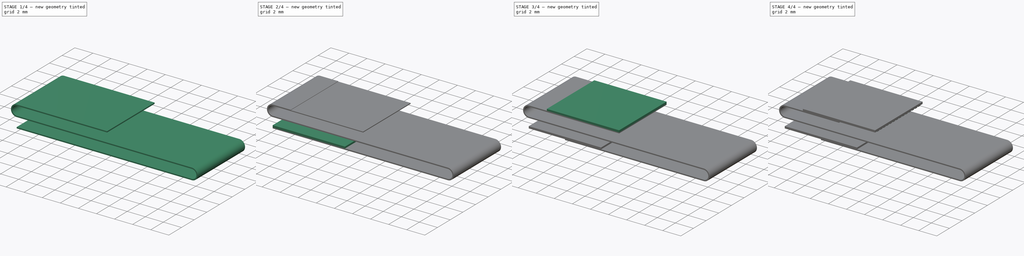
[diagram: build sequence overview — one tinted view per stage of 4, left to right]
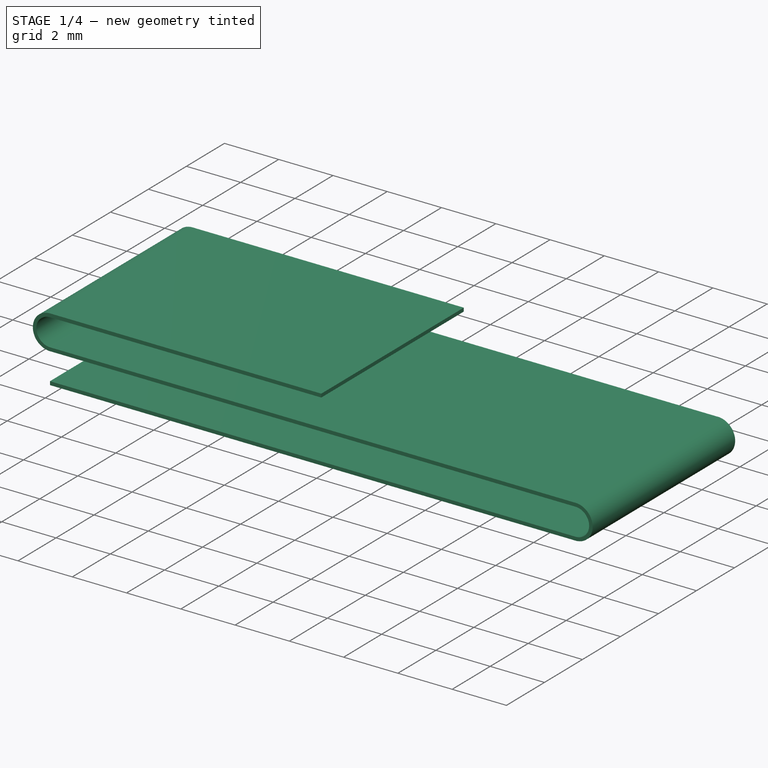
[diagram: stage 1 of 4 — iso view after this stage's code; geometry added in this stage tinted green]
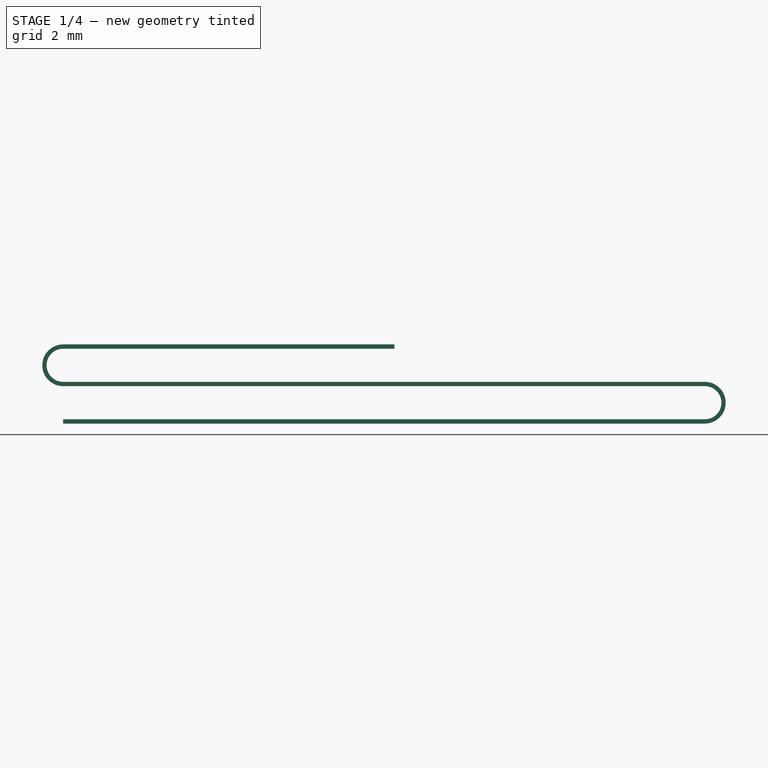
[diagram: stage 1 of 4 — front view after this stage's code; geometry added in this stage tinted green]
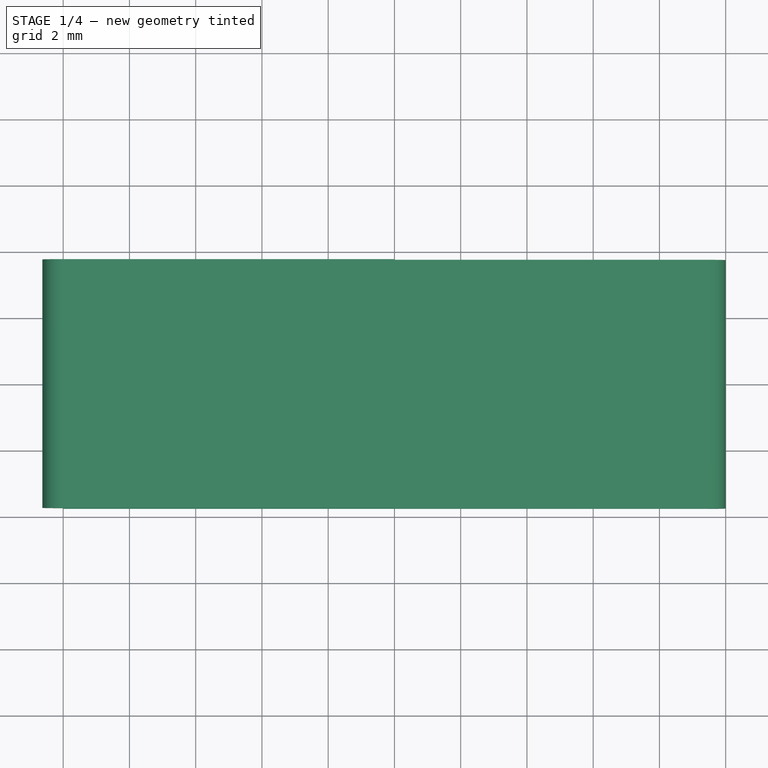
[diagram: stage 1 of 4 — top view after this stage's code; geometry added in this stage tinted green]
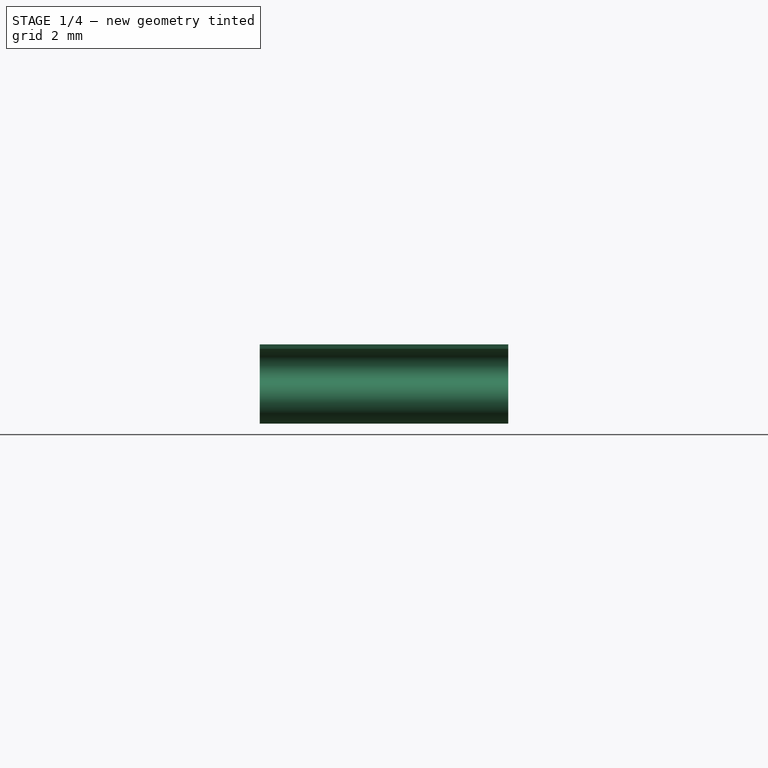
[diagram: stage 1 of 4 — right view after this stage's code; geometry added in this stage tinted green]
FCSTD DOCUMENT  (FreeCAD 0.18.4R)
Label: FFC_50mm
License: All rights reserved
LicenseURL: http://en.wikipedia.org/wiki/All_rights_reserved
objects: Sketcher::SketchObject×9, PartDesign::Pad×5, PartDesign::Pocket×4, PartDesign::FeaturePython×2, PartDesign::Body×1
note: 30 computed .brp shape members not serialized (recipe doc carries the construction recipe); baked Part::Feature solids carry a one-line shape summary decoded from their .brp

FEATURE [Sketcher::SketchObject] Sketch
  MapMode = 5
  Support = -> [XY_Plane]
  sketch-geometry (4):
    g0: LineSegment StartX=0 StartY=3.75 StartZ=0 EndX=20 EndY=3.75 EndZ=0
    g1: LineSegment StartX=20 StartY=3.75 StartZ=0 EndX=20 EndY=-3.75 EndZ=0
    g2: LineSegment StartX=20 StartY=-3.75 StartZ=0 EndX=0 EndY=-3.75 EndZ=0
    g3: LineSegment StartX=0 StartY=-3.75 StartZ=0 EndX=0 EndY=3.75 EndZ=0
  constraints (11):
    c: Coincident(g0,g1)
    c: Coincident(g1,g2)
    c: Coincident(g2,g3)
    c: Coincident(g3,g0)
    c: Horizontal(g0)
    c: Horizontal(g2)
    c: Vertical(g3)
    c: Symmetric(g0,g1,g-1)
    c: DistanceY(g1,g1) = 7.5
    c: DistanceX(g2,g2) = 20
    c: PointOnObject(g0,g-2)
FEATURE [PartDesign::Pad] Pad
  Length = 0.13
  Length2 = 100
  Midplane = true
  Profile = -> Sketch
  Type = 0
FEATURE [PartDesign::FeaturePython] Bend  # WARN: FeaturePython — macro-defined, semantics opaque (R4)
  AutoMiter = true
  BaseFeature = -> Pad
  BendType = 1
  LengthList = [20]
  ReliefFactor = 0.7
  UseReliefFactor = false
  angle = 180
  baseObject = -> Pad [Face2]
  bendAList = [180]
  extend1 = 0
  extend2 = 0
  gap1 = 0
  gap2 = 0
  invert = false
  kfactor = 0.5
  length = 20
  miterangle1 = 0
  miterangle2 = 0
  offset = 0
  radius = 0.5
  reliefType = 0
  reliefd = 1
  reliefw = 0.8
  sketchflip = false
  sketchinvert = false
  unfold = false
FEATURE [PartDesign::FeaturePython] Bend001  # WARN: FeaturePython — macro-defined, semantics opaque (R4)
  AutoMiter = true
  BaseFeature = -> Bend
  BendType = 1
  LengthList = [10]
  ReliefFactor = 0.7
  UseReliefFactor = false
  angle = 180
  baseObject = -> Bend [Face3]
  bendAList = [180]
  extend1 = 0
  extend2 = 0
  gap1 = 0
  gap2 = 0
  invert = true
  kfactor = 0.5
  length = 10
  miterangle1 = 0
  miterangle2 = 0
  offset = 0
  radius = 0.5
  reliefType = 0
  reliefd = 1
  reliefw = 0.8
  sketchflip = false
  sketchinvert = false
  unfold = false
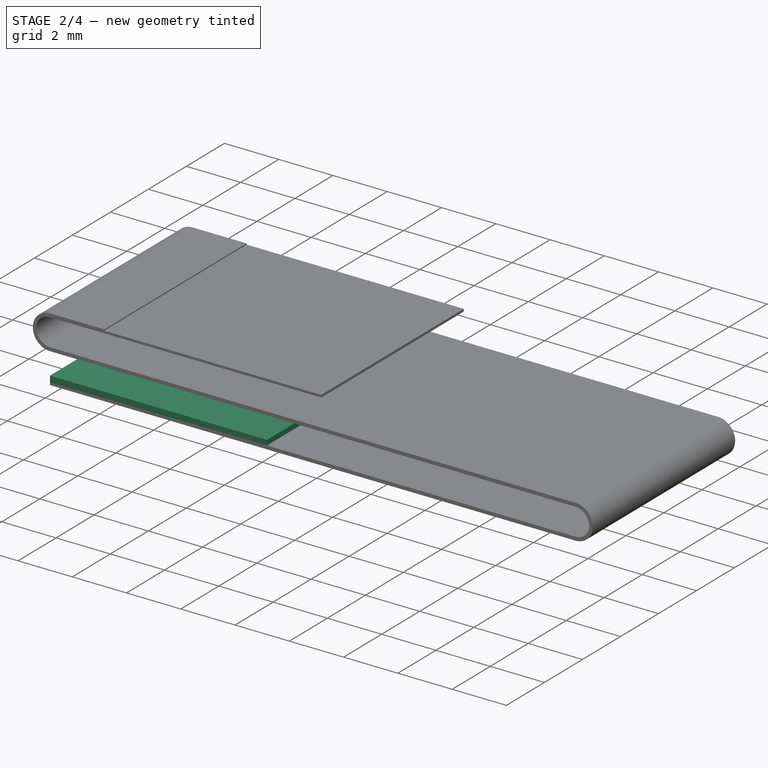
[diagram: stage 2 of 4 — iso view after this stage's code; geometry added in this stage tinted green]
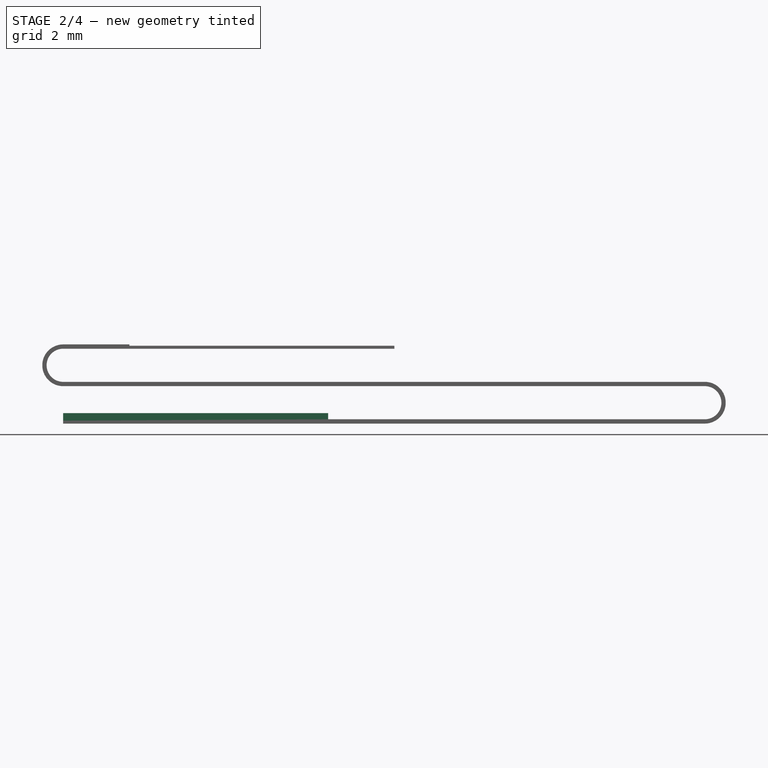
[diagram: stage 2 of 4 — front view after this stage's code; geometry added in this stage tinted green]
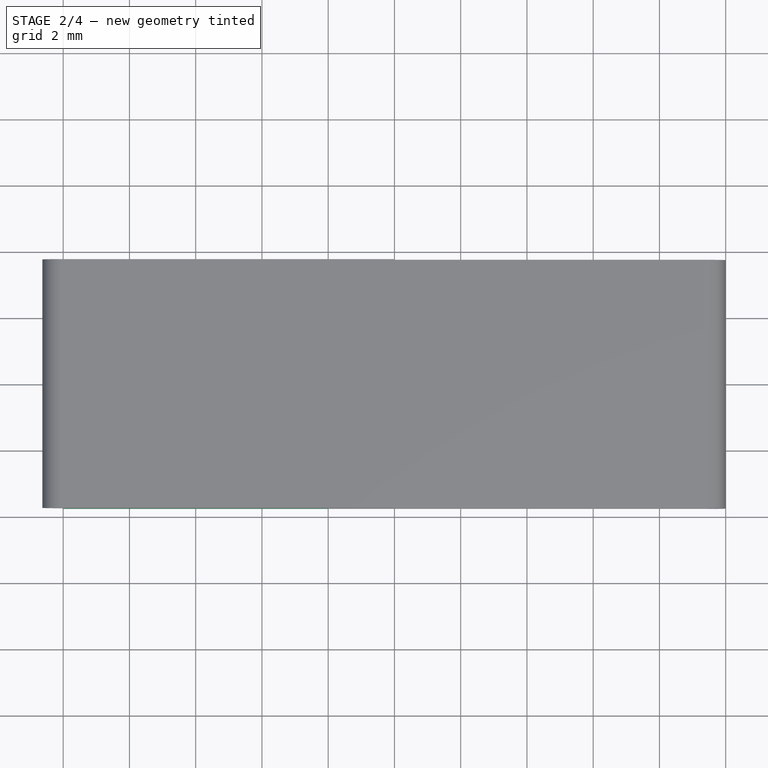
[diagram: stage 2 of 4 — top view after this stage's code; geometry added in this stage tinted green]
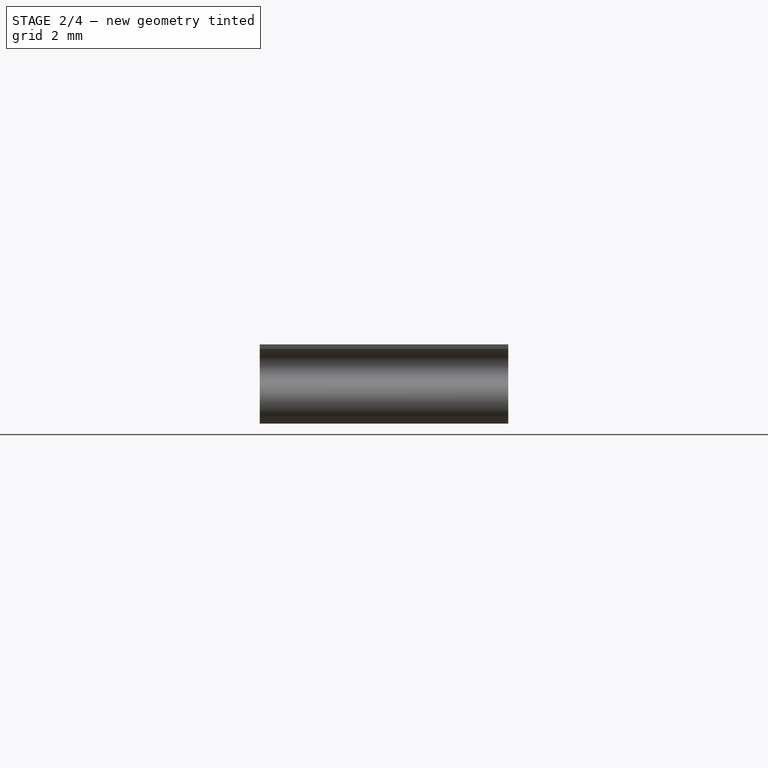
[diagram: stage 2 of 4 — right view after this stage's code; geometry added in this stage tinted green]
FEATURE [Sketcher::SketchObject] Sketch001
  MapMode = 5
  Placement = pos=(0,0,0.065) rot=(0,0,1;0rad)
  Support = -> [Bend001]
  sketch-geometry (4):
    g0: LineSegment StartX=0 StartY=3.75 StartZ=0 EndX=8 EndY=3.75 EndZ=0
    g1: LineSegment StartX=8 StartY=3.75 StartZ=0 EndX=8 EndY=-3.75 EndZ=0
    g2: LineSegment StartX=8 StartY=-3.75 StartZ=0 EndX=0 EndY=-3.75 EndZ=0
    g3: LineSegment StartX=0 StartY=-3.75 StartZ=0 EndX=0 EndY=3.75 EndZ=0
  constraints (11):
    c: Coincident(g0,g1)
    c: Coincident(g1,g2)
    c: Coincident(g2,g3)
    c: Coincident(g3,g0)
    c: Horizontal(g0)
    c: Horizontal(g2)
    c: Vertical(g3)
    c: PointOnObject(g0,g-2)
    c: DistanceX(g0,g0) = 8
    c: DistanceY(g1,g1) = 7.5
    c: Symmetric(g0,g1,g-1)
FEATURE [Sketcher::SketchObject] Sketch002
  MapMode = 5
  Placement = pos=(0,0,2.325) rot=(0,0,1;0rad)
  sketch-geometry (4):
    g0: LineSegment StartX=2 StartY=3.75 StartZ=0 EndX=10 EndY=3.75 EndZ=0
    g1: LineSegment StartX=10 StartY=3.75 StartZ=0 EndX=10 EndY=-3.75 EndZ=0
    g2: LineSegment StartX=10 StartY=-3.75 StartZ=0 EndX=2 EndY=-3.75 EndZ=0
    g3: LineSegment StartX=2 StartY=-3.75 StartZ=0 EndX=2 EndY=3.75 EndZ=0
  constraints (11):
    c: Coincident(g0,g1)
    c: Coincident(g1,g2)
    c: Coincident(g2,g3)
    c: Coincident(g3,g0)
    c: Horizontal(g0)
    c: Horizontal(g2)
    c: Vertical(g1)
    c: Symmetric(g0,g2,g-1)
    c: DistanceX(g0,g0) = 8
    c: DistanceY(g3,g3) = 7.5
    c: DistanceX(g-1,g0) = 10
FEATURE [PartDesign::Pocket] Pocket
  BaseFeature = -> Bend001
  Length = 0.04
  Length2 = 100
  Profile = -> Sketch001
  Type = 0
FEATURE [Sketcher::SketchObject] Sketch004
  MapMode = 5
  Placement = pos=(0,0,0.025) rot=(0,0,1;0rad)
  Support = -> [Pocket]
  sketch-geometry (4):
    g0: LineSegment StartX=0 StartY=3.75 StartZ=0 EndX=8 EndY=3.75 EndZ=0
    g1: LineSegment StartX=8 StartY=3.75 StartZ=0 EndX=8 EndY=-3.75 EndZ=0
    g2: LineSegment StartX=8 StartY=-3.75 StartZ=0 EndX=0 EndY=-3.75 EndZ=0
    g3: LineSegment StartX=0 StartY=-3.75 StartZ=0 EndX=0 EndY=3.75 EndZ=0
  constraints (11):
    c: Coincident(g0,g1)
    c: Coincident(g1,g2)
    c: Coincident(g2,g3)
    c: Coincident(g3,g0)
    c: Horizontal(g0)
    c: Horizontal(g2)
    c: Vertical(g3)
    c: Symmetric(g0,g1,g-1)
    c: PointOnObject(g0,g-2)
    c: DistanceX(g0,g0) = 8
    c: DistanceY(g3,g3) = 7.5
FEATURE [PartDesign::Pad] Pad001
  BaseFeature = -> Pocket
  Length = 0.225
  Length2 = 100
  Profile = -> Sketch004
  Type = 0
FEATURE [PartDesign::Pocket] Pocket001
  BaseFeature = -> Pad001
  Length = 0.04
  Length2 = 100
  Profile = -> Sketch002
  Type = 0
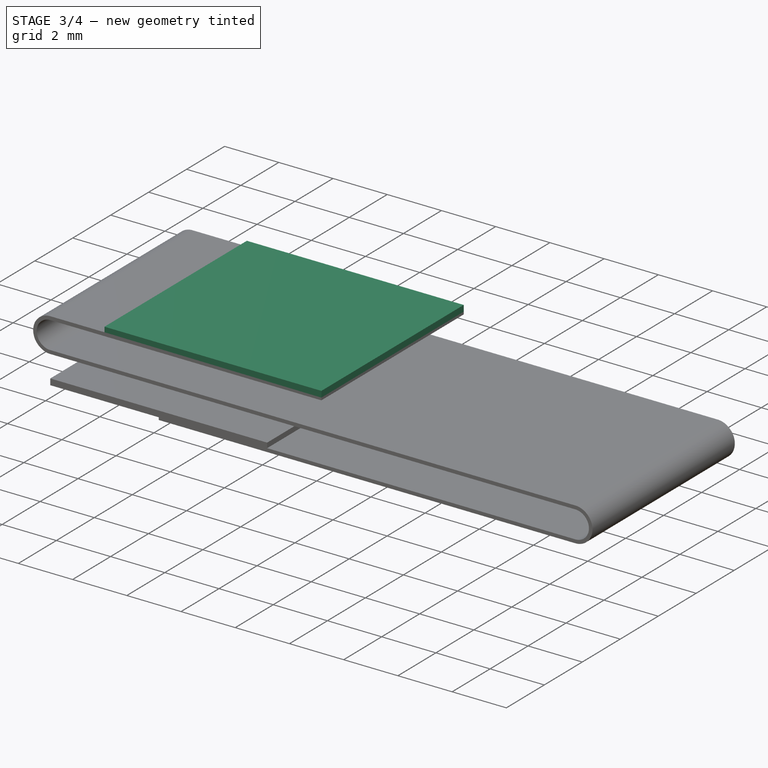
[diagram: stage 3 of 4 — iso view after this stage's code; geometry added in this stage tinted green]
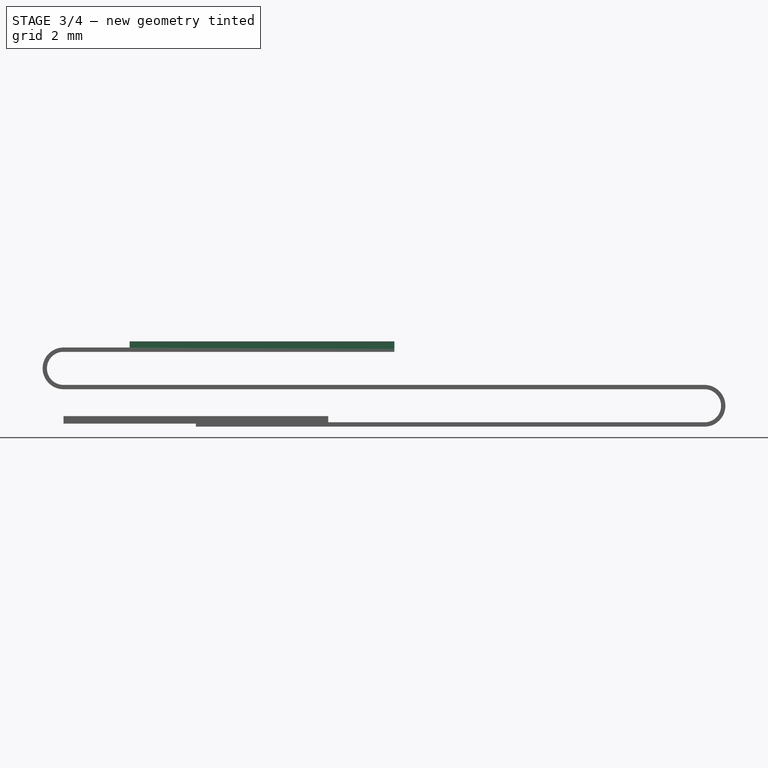
[diagram: stage 3 of 4 — front view after this stage's code; geometry added in this stage tinted green]
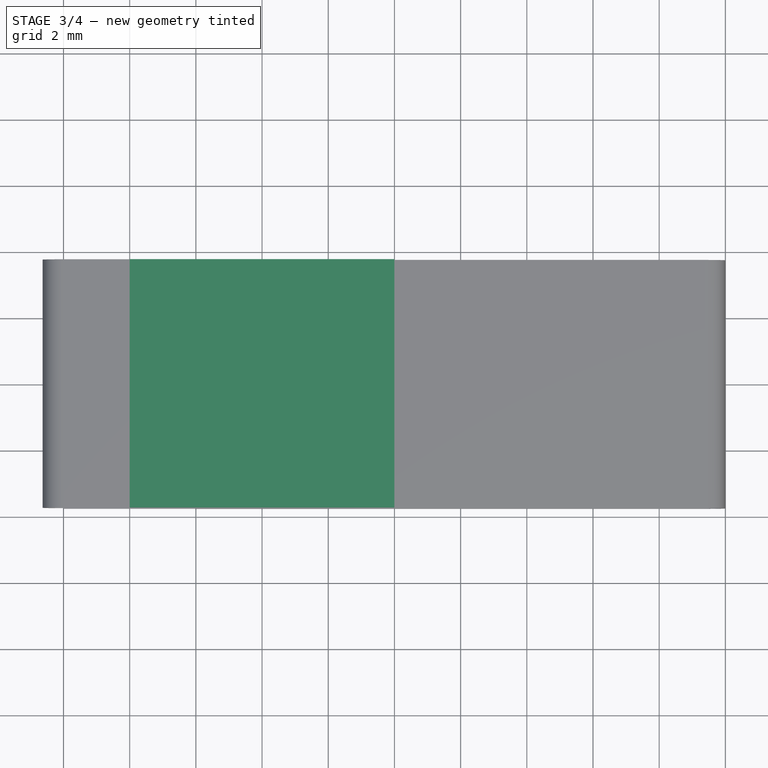
[diagram: stage 3 of 4 — top view after this stage's code; geometry added in this stage tinted green]
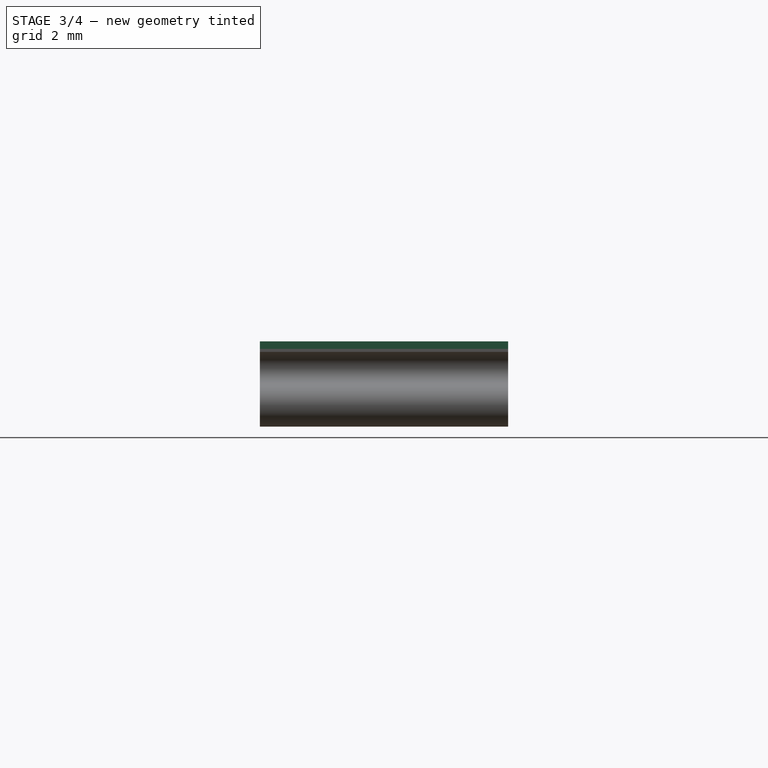
[diagram: stage 3 of 4 — right view after this stage's code; geometry added in this stage tinted green]
FEATURE [Sketcher::SketchObject] Sketch005
  MapMode = 5
  Placement = pos=(0,0,2.285) rot=(0,0,1;0rad)
  Support = -> [Pocket001]
  sketch-geometry (4):
    g0: LineSegment StartX=2 StartY=3.75 StartZ=0 EndX=10 EndY=3.75 EndZ=0
    g1: LineSegment StartX=10 StartY=3.75 StartZ=0 EndX=10 EndY=-3.75 EndZ=0
    g2: LineSegment StartX=10 StartY=-3.75 StartZ=0 EndX=2 EndY=-3.75 EndZ=0
    g3: LineSegment StartX=2 StartY=-3.75 StartZ=0 EndX=2 EndY=3.75 EndZ=0
  constraints (11):
    c: Coincident(g0,g1)
    c: Coincident(g1,g2)
    c: Coincident(g2,g3)
    c: Coincident(g3,g0)
    c: Horizontal(g0)
    c: Horizontal(g2)
    c: Vertical(g3)
    c: Symmetric(g0,g1,g-1)
    c: DistanceX(g0,g0) = 8
    c: DistanceY(g1,g1) = 7.5
    c: DistanceX(g-1,g1) = 10
FEATURE [PartDesign::Pad] Pad002
  BaseFeature = -> Pocket001
  Length = 0.225
  Length2 = 100
  Profile = -> Sketch005
  Type = 0
FEATURE [Sketcher::SketchObject] Sketch006
  MapMode = 5
  Placement = pos=(0,0,-0.065) rot=(1,0,0;3.14159rad)
  Support = -> [Pad002]
  sketch-geometry (4):
    g0: LineSegment StartX=0 StartY=3.75 StartZ=0 EndX=4 EndY=3.75 EndZ=0
    g1: LineSegment StartX=4 StartY=3.75 StartZ=0 EndX=4 EndY=-3.75 EndZ=0
    g2: LineSegment StartX=4 StartY=-3.75 StartZ=0 EndX=0 EndY=-3.75 EndZ=0
    g3: LineSegment StartX=0 StartY=-3.75 StartZ=0 EndX=0 EndY=3.75 EndZ=0
  constraints (11):
    c: Coincident(g0,g1)
    c: Coincident(g1,g2)
    c: Coincident(g2,g3)
    c: Coincident(g3,g0)
    c: Horizontal(g0)
    c: Horizontal(g2)
    c: Vertical(g3)
    c: Symmetric(g0,g1,g-1)
    c: DistanceX(g0,g0) = 4
    c: DistanceY(g1,g1) = 7.5
    c: PointOnObject(g0,g-2)
FEATURE [PartDesign::Pocket] Pocket002
  BaseFeature = -> Pad002
  Length = 0.09
  Length2 = 100
  Profile = -> Sketch006
  Type = 0
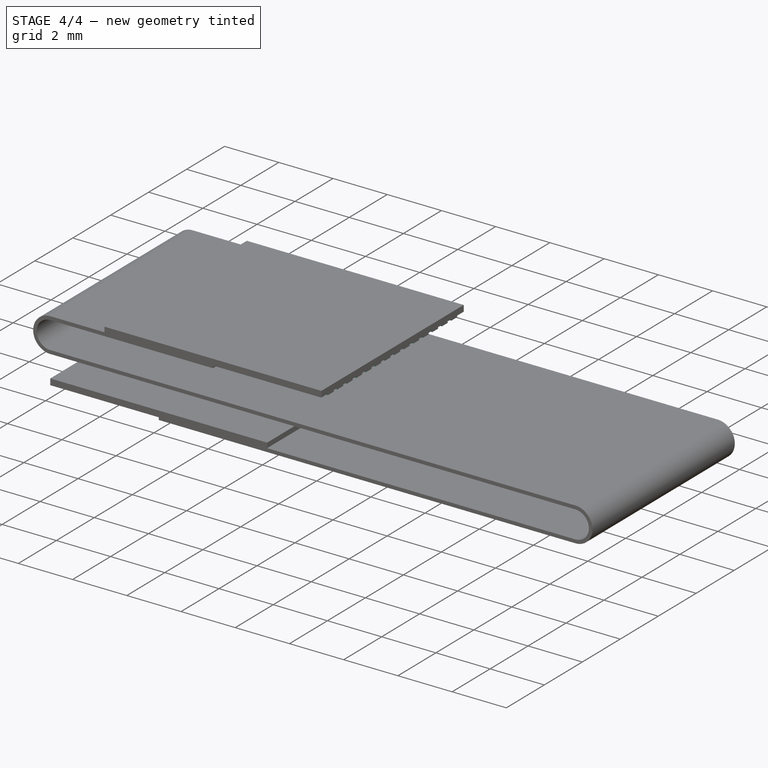
[diagram: stage 4 of 4 — iso view after this stage's code; geometry added in this stage tinted green]
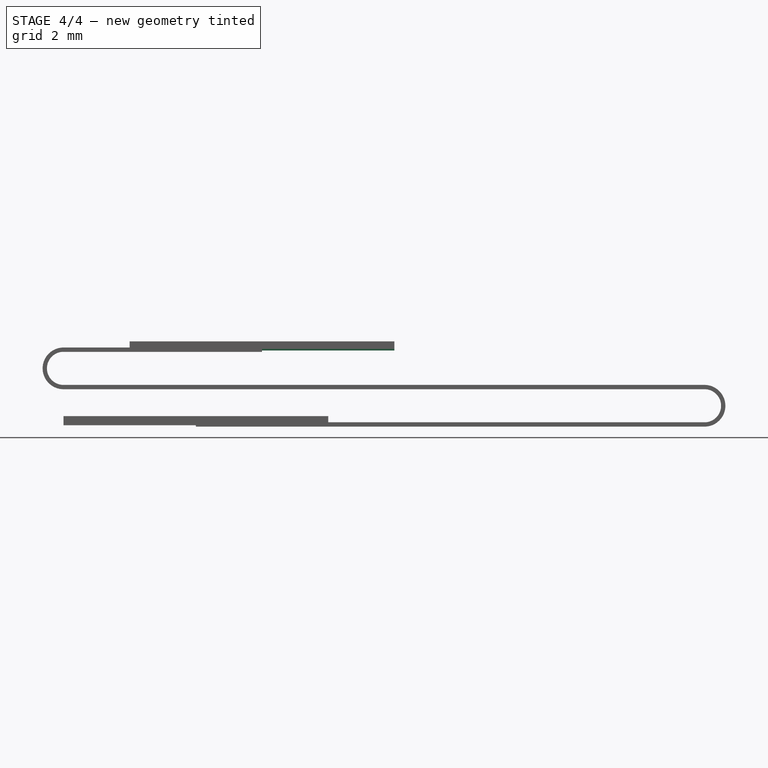
[diagram: stage 4 of 4 — front view after this stage's code; geometry added in this stage tinted green]
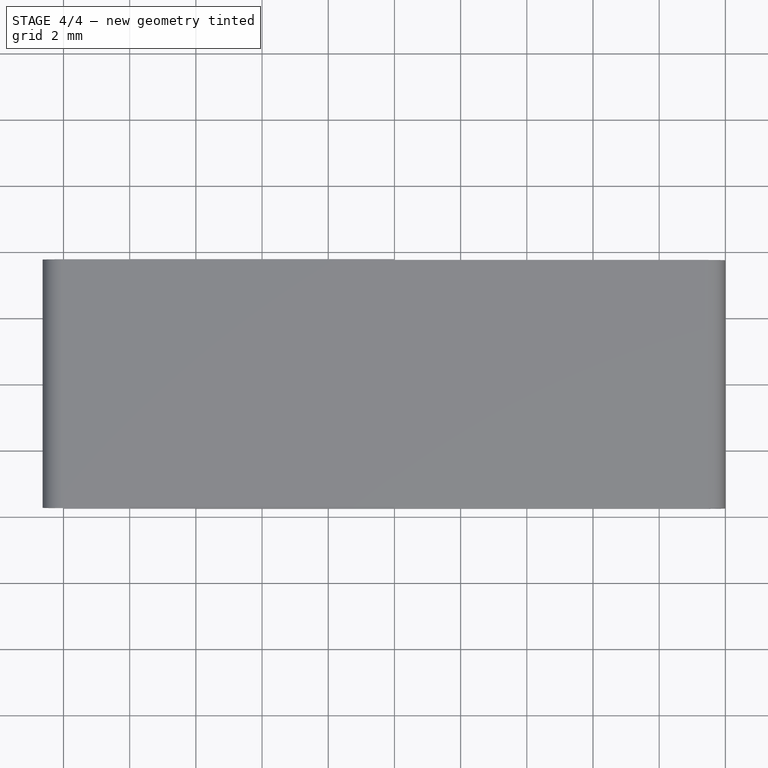
[diagram: stage 4 of 4 — top view after this stage's code; geometry added in this stage tinted green]
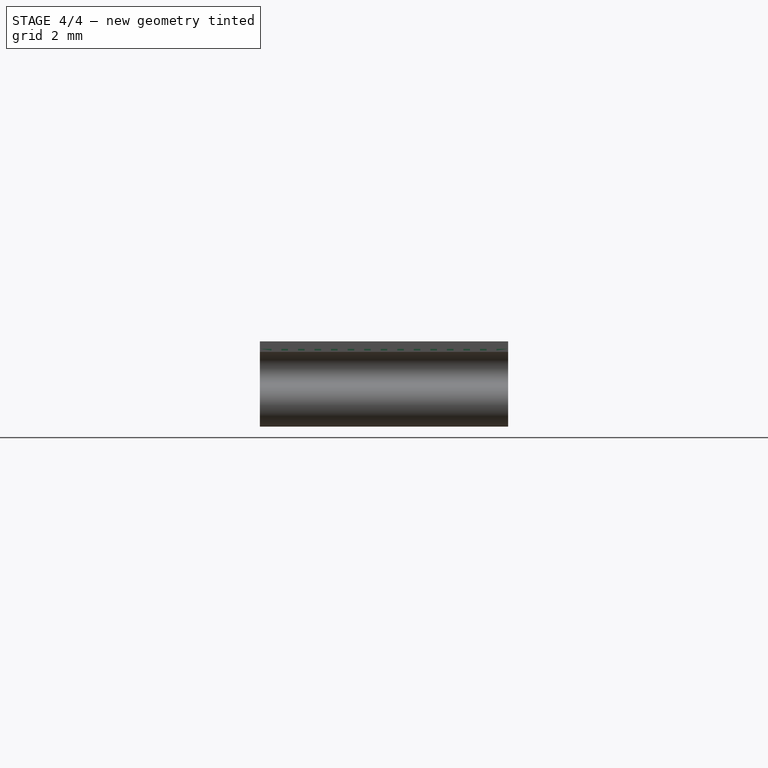
[diagram: stage 4 of 4 — right view after this stage's code; geometry added in this stage tinted green]
FEATURE [Sketcher::SketchObject] Sketch007
  MapMode = 5
  Placement = pos=(0,0,2.195) rot=(1,0,0;3.14159rad)
  Support = -> [Pocket002]
  sketch-geometry (4):
    g0: LineSegment StartX=6 StartY=3.75 StartZ=0 EndX=10 EndY=3.75 EndZ=0
    g1: LineSegment StartX=10 StartY=3.75 StartZ=0 EndX=10 EndY=-3.75 EndZ=0
    g2: LineSegment StartX=10 StartY=-3.75 StartZ=0 EndX=6 EndY=-3.75 EndZ=0
    g3: LineSegment StartX=6 StartY=-3.75 StartZ=0 EndX=6 EndY=3.75 EndZ=0
  constraints (11):
    c: Coincident(g0,g1)
    c: Coincident(g1,g2)
    c: Coincident(g2,g3)
    c: Coincident(g3,g0)
    c: Horizontal(g0)
    c: Horizontal(g2)
    c: Vertical(g1)
    c: Symmetric(g0,g2,g-1)
    c: DistanceY(g3,g3) = 7.5
    c: DistanceX(g0,g0) = 4
    c: DistanceX(g-1,g1) = 10
FEATURE [PartDesign::Pocket] Pocket003
  BaseFeature = -> Pocket002
  Length = 0.09
  Length2 = 100
  Profile = -> Sketch007
  Type = 0
FEATURE [Sketcher::SketchObject] Sketch008  label="Conductors"
  MapMode = 5
  Placement = pos=(0,0,0.025) rot=(1,0,0;3.14159rad)
  Support = -> [Pocket003]
  sketch-geometry (57):
    g0: LineSegment StartX=-3.6e-15 StartY=3.4 StartZ=0 EndX=4 EndY=3.4 EndZ=0
    g1: LineSegment StartX=4 StartY=3.4 StartZ=0 EndX=4 EndY=3.1 EndZ=0
    g2: LineSegment StartX=4 StartY=3.1 StartZ=0 EndX=-3.6e-15 EndY=3.1 EndZ=0
    g3: LineSegment StartX=-3.6e-15 StartY=3.1 StartZ=0 EndX=-3.6e-15 EndY=3.4 EndZ=0
    g4: LineSegment StartX=-3.6e-15 StartY=2.9 StartZ=0 EndX=4 EndY=2.9 EndZ=0
    g5: LineSegment StartX=4 StartY=2.9 StartZ=0 EndX=4 EndY=2.6 EndZ=0
    g6: LineSegment StartX=4 StartY=2.6 StartZ=0 EndX=-3.6e-15 EndY=2.6 EndZ=0
    g7: LineSegment StartX=-3.6e-15 StartY=2.6 StartZ=0 EndX=-3.6e-15 EndY=2.9 EndZ=0
    g8: LineSegment StartX=-3.6e-15 StartY=2.4 StartZ=0 EndX=4 EndY=2.4 EndZ=0
    g9: LineSegment StartX=4 StartY=2.4 StartZ=0 EndX=4 EndY=2.1 EndZ=0
    g10: LineSegment StartX=4 StartY=2.1 StartZ=0 EndX=-3.6e-15 EndY=2.1 EndZ=0
    g11: LineSegment StartX=-3.6e-15 StartY=2.1 StartZ=0 EndX=-3.6e-15 EndY=2.4 EndZ=0
    g12: LineSegment StartX=-3.6e-15 StartY=1.9 StartZ=0 EndX=4 EndY=1.9 EndZ=0
    g13: LineSegment StartX=4 StartY=1.9 StartZ=0 EndX=4 EndY=1.6 EndZ=0
    g14: LineSegment StartX=4 StartY=1.6 StartZ=0 EndX=-3.6e-15 EndY=1.6 EndZ=0
    g15: LineSegment StartX=-3.6e-15 StartY=1.6 StartZ=0 EndX=-3.6e-15 EndY=1.9 EndZ=0
    g16: LineSegment StartX=-3.6e-15 StartY=1.4 StartZ=0 EndX=4 EndY=1.4 EndZ=0
    g17: LineSegment StartX=4 StartY=1.4 StartZ=0 EndX=4 EndY=1.1 EndZ=0
    g18: LineSegment StartX=4 StartY=1.1 StartZ=0 EndX=-3.6e-15 EndY=1.1 EndZ=0
    g19: LineSegment StartX=-3.6e-15 StartY=1.1 StartZ=0 EndX=-3.6e-15 EndY=1.4 EndZ=0
    g20: LineSegment StartX=-3.6e-15 StartY=0.9 StartZ=0 EndX=4 EndY=0.9 EndZ=0
    g21: LineSegment StartX=4 StartY=0.9 StartZ=0 EndX=4 EndY=0.6 EndZ=0
    g22: LineSegment StartX=4 StartY=0.6 StartZ=0 EndX=-3.6e-15 EndY=0.6 EndZ=0
    g23: LineSegment StartX=-3.6e-15 StartY=0.6 StartZ=0 EndX=-3.6e-15 EndY=0.9 EndZ=0
    g24: LineSegment StartX=-3.6e-15 StartY=0.4 StartZ=0 EndX=4 EndY=0.4 EndZ=0
    g25: LineSegment StartX=4 StartY=0.4 StartZ=0 EndX=4 EndY=0.1 EndZ=0
    g26: LineSegment StartX=4 StartY=0.1 StartZ=0 EndX=-3.6e-15 EndY=0.1 EndZ=0
    g27: LineSegment StartX=-3.6e-15 StartY=0.1 StartZ=0 EndX=-3.6e-15 EndY=0.4 EndZ=0
    g28: LineSegment StartX=-3.6e-15 StartY=-0.1 StartZ=0 EndX=4 EndY=-0.1 EndZ=0
    g29: LineSegment StartX=4 StartY=-0.1 StartZ=0 EndX=4 EndY=-0.4 EndZ=0
    g30: LineSegment StartX=4 StartY=-0.4 StartZ=0 EndX=-3.6e-15 EndY=-0.4 EndZ=0
    g31: LineSegment StartX=-3.6e-15 StartY=-0.4 StartZ=0 EndX=-3.6e-15 EndY=-0.1 EndZ=0
    g32: LineSegment StartX=-3.6e-15 StartY=-0.6 StartZ=0 EndX=4 EndY=-0.6 EndZ=0
    g33: LineSegment StartX=4 StartY=-0.6 StartZ=0 EndX=4 EndY=-0.9 EndZ=0
    g34: LineSegment StartX=4 StartY=-0.9 StartZ=0 EndX=-3.6e-15 EndY=-0.9 EndZ=0
    g35: LineSegment StartX=-3.6e-15 StartY=-0.9 StartZ=0 EndX=-3.6e-15 EndY=-0.6 EndZ=0
    g36: LineSegment StartX=-3.6e-15 StartY=-1.1 StartZ=0 EndX=4 EndY=-1.1 EndZ=0
    g37: LineSegment StartX=4 StartY=-1.1 StartZ=0 EndX=4 EndY=-1.4 EndZ=0
    g38: LineSegment StartX=4 StartY=-1.4 StartZ=0 EndX=-3.6e-15 EndY=-1.4 EndZ=0
    g39: LineSegment StartX=-3.6e-15 StartY=-1.4 StartZ=0 EndX=-3.6e-15 EndY=-1.1 EndZ=0
    g40: LineSegment StartX=-3.6e-15 StartY=-1.6 StartZ=0 EndX=4 EndY=-1.6 EndZ=0
    g41: LineSegment StartX=4 StartY=-1.6 StartZ=0 EndX=4 EndY=-1.9 EndZ=0
    g42: LineSegment StartX=4 StartY=-1.9 StartZ=0 EndX=-3.6e-15 EndY=-1.9 EndZ=0
    g43: LineSegment StartX=-3.6e-15 StartY=-1.9 StartZ=0 EndX=-3.6e-15 EndY=-1.6 EndZ=0
    g44: LineSegment StartX=-3.6e-15 StartY=-2.1 StartZ=0 EndX=4 EndY=-2.1 EndZ=0
    g45: LineSegment StartX=4 StartY=-2.1 StartZ=0 EndX=4 EndY=-2.4 EndZ=0
    g46: LineSegment StartX=4 StartY=-2.4 StartZ=0 EndX=-3.6e-15 EndY=-2.4 EndZ=0
    g47: LineSegment StartX=-3.6e-15 StartY=-2.4 StartZ=0 EndX=-3.6e-15 EndY=-2.1 EndZ=0
    g48: LineSegment StartX=-3.6e-15 StartY=-2.6 StartZ=0 EndX=4 EndY=-2.6 EndZ=0
    g49: LineSegment StartX=4 StartY=-2.6 StartZ=0 EndX=4 EndY=-2.9 EndZ=0
    g50: LineSegment StartX=4 StartY=-2.9 StartZ=0 EndX=-3.6e-15 EndY=-2.9 EndZ=0
    g51: LineSegment StartX=-3.6e-15 StartY=-2.9 StartZ=0 EndX=-3.6e-15 EndY=-2.6 EndZ=0
    g52: LineSegment StartX=-3.6e-15 StartY=-3.1 StartZ=0 EndX=4 EndY=-3.1 EndZ=0
    g53: LineSegment StartX=4 StartY=-3.1 StartZ=0 EndX=4 EndY=-3.4 EndZ=0
    g54: LineSegment StartX=4 StartY=-3.4 StartZ=0 EndX=-3.6e-15 EndY=-3.4 EndZ=0
    g55: LineSegment StartX=-3.6e-15 StartY=-3.4 StartZ=0 EndX=-3.6e-15 EndY=-3.1 EndZ=0
    g56: GeomPoint X=0 Y=3.26353 Z=0
  constraints (169):
    c: Coincident(g0,g1)
    c: Coincident(g1,g2)
    c: Coincident(g2,g3)
    c: Coincident(g3,g0)
    c: Horizontal(g0)
    c: Horizontal(g2)
    c: Vertical(g1)
    c: Vertical(g3)
    c: DistanceX(g0,g0) = 4
    c: DistanceY(g1,g1) = 0.3
    c: Coincident(g4,g5)
    c: Coincident(g5,g6)
    c: Coincident(g6,g7)
    c: Coincident(g7,g4)
    c: Horizontal(g4)
    c: Horizontal(g6)
    c: Vertical(g5)
    c: Vertical(g7)
    c: Equal(g0,g4) = 4
    c: Equal(g1,g5) = 0.3
    c: Coincident(g8,g9)
    c: Coincident(g9,g10)
    c: Coincident(g10,g11)
    c: Coincident(g11,g8)
    c: Horizontal(g8)
    c: Horizontal(g10)
    c: Vertical(g9)
    c: Vertical(g11)
    c: Equal(g8,g0)
    c: Equal(g9,g1)
    c: Coincident(g12,g13)
    c: Coincident(g13,g14)
    c: Coincident(g14,g15)
    c: Coincident(g15,g12)
    c: Horizontal(g12)
    c: Horizontal(g14)
    c: Vertical(g13)
    c: Vertical(g15)
    c: Equal(g12,g0)
    c: Equal(g13,g1)
    c: Coincident(g16,g17)
    c: Coincident(g17,g18)
    c: Coincident(g18,g19)
    c: Coincident(g19,g16)
    c: Horizontal(g16)
    c: Horizontal(g18)
    c: Vertical(g17)
    c: Vertical(g19)
    c: Equal(g0,g16) = 4
    c: Equal(g1,g17) = 0.3
    c: Coincident(g20,g21)
    c: Coincident(g21,g22)
    c: Coincident(g22,g23)
    c: Coincident(g23,g20)
    c: Horizontal(g20)
    c: Horizontal(g22)
    c: Vertical(g21)
    c: Vertical(g23)
    c: Equal(g0,g20) = 4
    c: Equal(g1,g21) = 0.3
    c: Coincident(g24,g25)
    c: Coincident(g25,g26)
    c: Coincident(g26,g27)
    c: Coincident(g27,g24)
    c: Horizontal(g24)
    c: Horizontal(g26)
    c: Vertical(g25)
    c: Vertical(g27)
    c: Equal(g0,g24) = 4
    c: Equal(g1,g25) = 0.3
    c: Coincident(g28,g29)
    c: Coincident(g29,g30)
    c: Coincident(g30,g31)
    c: Coincident(g31,g28)
    c: Horizontal(g28)
    c: Horizontal(g30)
    c: Vertical(g29)
    c: Vertical(g31)
    c: Equal(g0,g28) = 4
    c: Equal(g1,g29) = 0.3
    c: Coincident(g32,g33)
    c: Coincident(g33,g34)
    c: Coincident(g34,g35)
    c: Coincident(g35,g32)
    c: Horizontal(g32)
    c: Horizontal(g34)
    c: Vertical(g33)
    c: Vertical(g35)
    c: Equal(g0,g32) = 4
    c: Equal(g1,g33) = 0.3
    c: Coincident(g36,g37)
    c: Coincident(g37,g38)
    c: Coincident(g38,g39)
    c: Coincident(g39,g36)
    c: Horizontal(g36)
    c: Horizontal(g38)
    c: Vertical(g37)
    c: Vertical(g39)
    c: Equal(g0,g36) = 4
    c: Equal(g1,g37) = 0.3
    c: Coincident(g40,g41)
    c: Coincident(g41,g42)
    c: Coincident(g42,g43)
    c: Coincident(g43,g40)
    c: Horizontal(g40)
    c: Horizontal(g42)
    c: Vertical(g41)
    c: Vertical(g43)
    c: Equal(g0,g40) = 4
    c: Equal(g1,g41) = 0.3
    c: Coincident(g44,g45)
    c: Coincident(g45,g46)
    c: Coincident(g46,g47)
    c: Coincident(g47,g44)
    c: Horizontal(g44)
    c: Horizontal(g46)
    c: Vertical(g45)
    c: Vertical(g47)
    c: Equal(g0,g44) = 4
    c: Equal(g1,g45) = 0.3
    c: Coincident(g48,g49)
    c: Coincident(g49,g50)
    c: Coincident(g50,g51)
    c: Coincident(g51,g48)
    c: Horizontal(g48)
    c: Horizontal(g50)
    c: Vertical(g49)
    c: Vertical(g51)
    c: Equal(g0,g48) = 4
    c: Equal(g1,g49) = 0.3
    c: Coincident(g52,g53)
    c: Coincident(g53,g54)
    c: Coincident(g54,g55)
    c: Coincident(g55,g52)
    c: Horizontal(g52)
    c: Horizontal(g54)
    c: Vertical(g53)
    c: Vertical(g55)
    c: Equal(g0,g52) = 4
    c: Equal(g1,g53) = 0.3
    c: Vertical(g6,g10)
    c: Vertical(g10,g14)
    c: Vertical(g14,g18)
    c: Vertical(g18,g2)
    c: Vertical(g2,g22)
    c: Vertical(g22,g26)
    c: Vertical(g26,g30)
    c: Vertical(g30,g34)
    c: Vertical(g34,g38)
    c: Vertical(g38,g42)
    c: Vertical(g42,g46)
    c: Vertical(g46,g50)
    c: Vertical(g50,g54)
    c: DistanceY(g52,g48) = 0.5
    c: DistanceY(g48,g44) = 0.5
    c: DistanceY(g44,g40) = 0.5
    c: DistanceY(g40,g36) = 0.5
    c: DistanceY(g36,g32) = 0.5
    c: DistanceY(g32,g28) = 0.5
    c: DistanceY(g28,g24) = 0.5
    c: DistanceY(g24,g20) = 0.5
    c: DistanceY(g20,g16) = 0.5
    c: DistanceY(g16,g12) = 0.5
    c: DistanceY(g12,g8) = 0.5
    c: DistanceY(g8,g4) = 0.5
    c: DistanceY(g4,g0) = 0.5
    c: DistanceY(g-1,g26) = 0.1
    c: PointOnObject(g56,g3)
    c: PointOnObject(g56,g-2)
FEATURE [PartDesign::Pad] Pad003
  BaseFeature = -> Pocket003
  Length = 0.05
  Length2 = 100
  Profile = -> Sketch008
  Type = 0
FEATURE [Sketcher::SketchObject] CopySketch009
  Placement = pos=(0,0,2.285) rot=(1,0,0;3.14159rad)
  sketch-geometry (57):
    g0: LineSegment StartX=6 StartY=3.4 StartZ=0 EndX=10 EndY=3.4 EndZ=0
    g1: LineSegment StartX=10 StartY=3.4 StartZ=0 EndX=10 EndY=3.1 EndZ=0
    g2: LineSegment StartX=10 StartY=3.1 StartZ=0 EndX=6 EndY=3.1 EndZ=0
    g3: LineSegment StartX=6 StartY=3.1 StartZ=0 EndX=6 EndY=3.4 EndZ=0
    g4: LineSegment StartX=6 StartY=2.9 StartZ=0 EndX=10 EndY=2.9 EndZ=0
    g5: LineSegment StartX=10 StartY=2.9 StartZ=0 EndX=10 EndY=2.6 EndZ=0
    g6: LineSegment StartX=10 StartY=2.6 StartZ=0 EndX=6 EndY=2.6 EndZ=0
    g7: LineSegment StartX=6 StartY=2.6 StartZ=0 EndX=6 EndY=2.9 EndZ=0
    g8: LineSegment StartX=6 StartY=2.4 StartZ=0 EndX=10 EndY=2.4 EndZ=0
    g9: LineSegment StartX=10 StartY=2.4 StartZ=0 EndX=10 EndY=2.1 EndZ=0
    g10: LineSegment StartX=10 StartY=2.1 StartZ=0 EndX=6 EndY=2.1 EndZ=0
    g11: LineSegment StartX=6 StartY=2.1 StartZ=0 EndX=6 EndY=2.4 EndZ=0
    g12: LineSegment StartX=6 StartY=1.9 StartZ=0 EndX=10 EndY=1.9 EndZ=0
    g13: LineSegment StartX=10 StartY=1.9 StartZ=0 EndX=10 EndY=1.6 EndZ=0
    g14: LineSegment StartX=10 StartY=1.6 StartZ=0 EndX=6 EndY=1.6 EndZ=0
    g15: LineSegment StartX=6 StartY=1.6 StartZ=0 EndX=6 EndY=1.9 EndZ=0
    g16: LineSegment StartX=6 StartY=1.4 StartZ=0 EndX=10 EndY=1.4 EndZ=0
    g17: LineSegment StartX=10 StartY=1.4 StartZ=0 EndX=10 EndY=1.1 EndZ=0
    g18: LineSegment StartX=10 StartY=1.1 StartZ=0 EndX=6 EndY=1.1 EndZ=0
    g19: LineSegment StartX=6 StartY=1.1 StartZ=0 EndX=6 EndY=1.4 EndZ=0
    g20: LineSegment StartX=6 StartY=0.9 StartZ=0 EndX=10 EndY=0.9 EndZ=0
    g21: LineSegment StartX=10 StartY=0.9 StartZ=0 EndX=10 EndY=0.6 EndZ=0
    g22: LineSegment StartX=10 StartY=0.6 StartZ=0 EndX=6 EndY=0.6 EndZ=0
    g23: LineSegment StartX=6 StartY=0.6 StartZ=0 EndX=6 EndY=0.9 EndZ=0
    g24: LineSegment StartX=6 StartY=0.4 StartZ=0 EndX=10 EndY=0.4 EndZ=0
    g25: LineSegment StartX=10 StartY=0.4 StartZ=0 EndX=10 EndY=0.1 EndZ=0
    g26: LineSegment StartX=10 StartY=0.1 StartZ=0 EndX=6 EndY=0.1 EndZ=0
    g27: LineSegment StartX=6 StartY=0.1 StartZ=0 EndX=6 EndY=0.4 EndZ=0
    g28: LineSegment StartX=6 StartY=-0.1 StartZ=0 EndX=10 EndY=-0.1 EndZ=0
    g29: LineSegment StartX=10 StartY=-0.1 StartZ=0 EndX=10 EndY=-0.4 EndZ=0
    g30: LineSegment StartX=10 StartY=-0.4 StartZ=0 EndX=6 EndY=-0.4 EndZ=0
    g31: LineSegment StartX=6 StartY=-0.4 StartZ=0 EndX=6 EndY=-0.1 EndZ=0
    g32: LineSegment StartX=6 StartY=-0.6 StartZ=0 EndX=10 EndY=-0.6 EndZ=0
    g33: LineSegment StartX=10 StartY=-0.6 StartZ=0 EndX=10 EndY=-0.9 EndZ=0
    g34: LineSegment StartX=10 StartY=-0.9 StartZ=0 EndX=6 EndY=-0.9 EndZ=0
    g35: LineSegment StartX=6 StartY=-0.9 StartZ=0 EndX=6 EndY=-0.6 EndZ=0
    g36: LineSegment StartX=6 StartY=-1.1 StartZ=0 EndX=10 EndY=-1.1 EndZ=0
    g37: LineSegment StartX=10 StartY=-1.1 StartZ=0 EndX=10 EndY=-1.4 EndZ=0
    g38: LineSegment StartX=10 StartY=-1.4 StartZ=0 EndX=6 EndY=-1.4 EndZ=0
    g39: LineSegment StartX=6 StartY=-1.4 StartZ=0 EndX=6 EndY=-1.1 EndZ=0
    g40: LineSegment StartX=6 StartY=-1.6 StartZ=0 EndX=10 EndY=-1.6 EndZ=0
    g41: LineSegment StartX=10 StartY=-1.6 StartZ=0 EndX=10 EndY=-1.9 EndZ=0
    g42: LineSegment StartX=10 StartY=-1.9 StartZ=0 EndX=6 EndY=-1.9 EndZ=0
    g43: LineSegment StartX=6 StartY=-1.9 StartZ=0 EndX=6 EndY=-1.6 EndZ=0
    g44: LineSegment StartX=6 StartY=-2.1 StartZ=0 EndX=10 EndY=-2.1 EndZ=0
    g45: LineSegment StartX=10 StartY=-2.1 StartZ=0 EndX=10 EndY=-2.4 EndZ=0
    g46: LineSegment StartX=10 StartY=-2.4 StartZ=0 EndX=6 EndY=-2.4 EndZ=0
    g47: LineSegment StartX=6 StartY=-2.4 StartZ=0 EndX=6 EndY=-2.1 EndZ=0
    g48: LineSegment StartX=6 StartY=-2.6 StartZ=0 EndX=10 EndY=-2.6 EndZ=0
    g49: LineSegment StartX=10 StartY=-2.6 StartZ=0 EndX=10 EndY=-2.9 EndZ=0
    g50: LineSegment StartX=10 StartY=-2.9 StartZ=0 EndX=6 EndY=-2.9 EndZ=0
    g51: LineSegment StartX=6 StartY=-2.9 StartZ=0 EndX=6 EndY=-2.6 EndZ=0
    g52: LineSegment StartX=6 StartY=-3.1 StartZ=0 EndX=10 EndY=-3.1 EndZ=0
    g53: LineSegment StartX=10 StartY=-3.1 StartZ=0 EndX=10 EndY=-3.4 EndZ=0
    g54: LineSegment StartX=10 StartY=-3.4 StartZ=0 EndX=6 EndY=-3.4 EndZ=0
    g55: LineSegment StartX=6 StartY=-3.4 StartZ=0 EndX=6 EndY=-3.1 EndZ=0
    g56: GeomPoint X=6 Y=3.26353 Z=0
  constraints (169):
    c: Coincident(g0,g1)
    c: Coincident(g1,g2)
    c: Coincident(g2,g3)
    c: Coincident(g3,g0)
    c: Horizontal(g0)
    c: Horizontal(g2)
    c: Vertical(g1)
    c: Vertical(g3)
    c: DistanceX(g0,g0) = 4
    c: DistanceY(g1,g1) = 0.3
    c: Coincident(g4,g5)
    c: Coincident(g5,g6)
    c: Coincident(g6,g7)
    c: Coincident(g7,g4)
    c: Horizontal(g4)
    c: Horizontal(g6)
    c: Vertical(g5)
    c: Vertical(g7)
    c: Equal(g0,g4) = 4
    c: Equal(g1,g5) = 0.3
    c: Coincident(g8,g9)
    c: Coincident(g9,g10)
    c: Coincident(g10,g11)
    c: Coincident(g11,g8)
    c: Horizontal(g8)
    c: Horizontal(g10)
    c: Vertical(g9)
    c: Vertical(g11)
    c: Equal(g8,g0)
    c: Equal(g9,g1)
    c: Coincident(g12,g13)
    c: Coincident(g13,g14)
    c: Coincident(g14,g15)
    c: Coincident(g15,g12)
    c: Horizontal(g12)
    c: Horizontal(g14)
    c: Vertical(g13)
    c: Vertical(g15)
    c: Equal(g12,g0)
    c: Equal(g13,g1)
    c: Coincident(g16,g17)
    c: Coincident(g17,g18)
    c: Coincident(g18,g19)
    c: Coincident(g19,g16)
    c: Horizontal(g16)
    c: Horizontal(g18)
    c: Vertical(g17)
    c: Vertical(g19)
    c: Equal(g0,g16) = 4
    c: Equal(g1,g17) = 0.3
    c: Coincident(g20,g21)
    c: Coincident(g21,g22)
    c: Coincident(g22,g23)
    c: Coincident(g23,g20)
    c: Horizontal(g20)
    c: Horizontal(g22)
    c: Vertical(g21)
    c: Vertical(g23)
    c: Equal(g0,g20) = 4
    c: Equal(g1,g21) = 0.3
    c: Coincident(g24,g25)
    c: Coincident(g25,g26)
    c: Coincident(g26,g27)
    c: Coincident(g27,g24)
    c: Horizontal(g24)
    c: Horizontal(g26)
    c: Vertical(g25)
    c: Vertical(g27)
    c: Equal(g0,g24) = 4
    c: Equal(g1,g25) = 0.3
    c: Coincident(g28,g29)
    c: Coincident(g29,g30)
    c: Coincident(g30,g31)
    c: Coincident(g31,g28)
    c: Horizontal(g28)
    c: Horizontal(g30)
    c: Vertical(g29)
    c: Vertical(g31)
    c: Equal(g0,g28) = 4
    c: Equal(g1,g29) = 0.3
    c: Coincident(g32,g33)
    c: Coincident(g33,g34)
    c: Coincident(g34,g35)
    c: Coincident(g35,g32)
    c: Horizontal(g32)
    c: Horizontal(g34)
    c: Vertical(g33)
    c: Vertical(g35)
    c: Equal(g0,g32) = 4
    c: Equal(g1,g33) = 0.3
    c: Coincident(g36,g37)
    c: Coincident(g37,g38)
    c: Coincident(g38,g39)
    c: Coincident(g39,g36)
    c: Horizontal(g36)
    c: Horizontal(g38)
    c: Vertical(g37)
    c: Vertical(g39)
    c: Equal(g0,g36) = 4
    c: Equal(g1,g37) = 0.3
    c: Coincident(g40,g41)
    c: Coincident(g41,g42)
    c: Coincident(g42,g43)
    c: Coincident(g43,g40)
    c: Horizontal(g40)
    c: Horizontal(g42)
    c: Vertical(g41)
    c: Vertical(g43)
    c: Equal(g0,g40) = 4
    c: Equal(g1,g41) = 0.3
    c: Coincident(g44,g45)
    c: Coincident(g45,g46)
    c: Coincident(g46,g47)
    c: Coincident(g47,g44)
    c: Horizontal(g44)
    c: Horizontal(g46)
    c: Vertical(g45)
    c: Vertical(g47)
    c: Equal(g0,g44) = 4
    c: Equal(g1,g45) = 0.3
    c: Coincident(g48,g49)
    c: Coincident(g49,g50)
    c: Coincident(g50,g51)
    c: Coincident(g51,g48)
    c: Horizontal(g48)
    c: Horizontal(g50)
    c: Vertical(g49)
    c: Vertical(g51)
    c: Equal(g0,g48) = 4
    c: Equal(g1,g49) = 0.3
    c: Coincident(g52,g53)
    c: Coincident(g53,g54)
    c: Coincident(g54,g55)
    c: Coincident(g55,g52)
    c: Horizontal(g52)
    c: Horizontal(g54)
    c: Vertical(g53)
    c: Vertical(g55)
    c: Equal(g0,g52) = 4
    c: Equal(g1,g53) = 0.3
    c: Vertical(g6,g10)
    c: Vertical(g10,g14)
    c: Vertical(g14,g18)
    c: Vertical(g18,g2)
    c: Vertical(g2,g22)
    c: Vertical(g22,g26)
    c: Vertical(g26,g30)
    c: Vertical(g30,g34)
    c: Vertical(g34,g38)
    c: Vertical(g38,g42)
    c: Vertical(g42,g46)
    c: Vertical(g46,g50)
    c: Vertical(g50,g54)
    c: DistanceY(g52,g48) = 0.5
    c: DistanceY(g48,g44) = 0.5
    c: DistanceY(g44,g40) = 0.5
    c: DistanceY(g40,g36) = 0.5
    c: DistanceY(g36,g32) = 0.5
    c: DistanceY(g32,g28) = 0.5
    c: DistanceY(g28,g24) = 0.5
    c: DistanceY(g24,g20) = 0.5
    c: DistanceY(g20,g16) = 0.5
    c: DistanceY(g16,g12) = 0.5
    c: DistanceY(g12,g8) = 0.5
    c: DistanceY(g8,g4) = 0.5
    c: DistanceY(g4,g0) = 0.5
    c: DistanceY(g-1,g26) = 0.1
    c: DistanceX(g-1,g56) = 6
    c: PointOnObject(g56,g3)
FEATURE [PartDesign::Pad] Pad004
  BaseFeature = -> Pad003
  Length = 0.05
  Length2 = 100
  Profile = -> CopySketch009
  Type = 0
FEATURE [PartDesign::Body] Body  label="FFC_50mm_folded_x2"
  Group = -> [Sketch,Pad,Bend,Bend001,Sketch001,Sketch002,Pocket,Sketch004,Pad001,Pocket001,Sketch005,Pad002,Sketch006,Pocket002,Sketch007,Pocket003,Sketch008,Pad003,Pad004]
  Origin = -> Origin
  Tip = -> Pad004
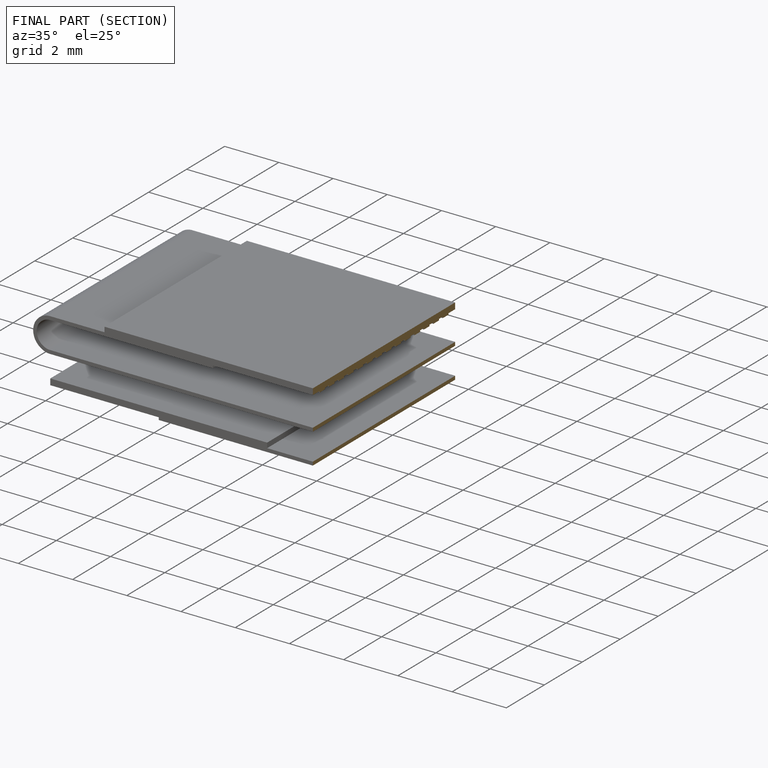
[diagram: finished part — half-section view (interior)]
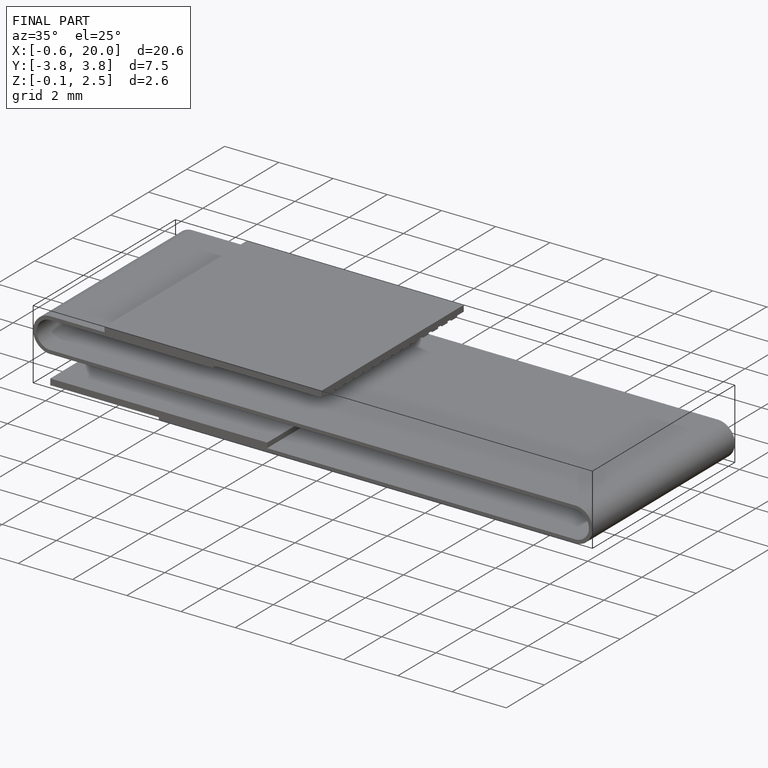
[diagram: finished part — iso view with bounding-box wireframe]
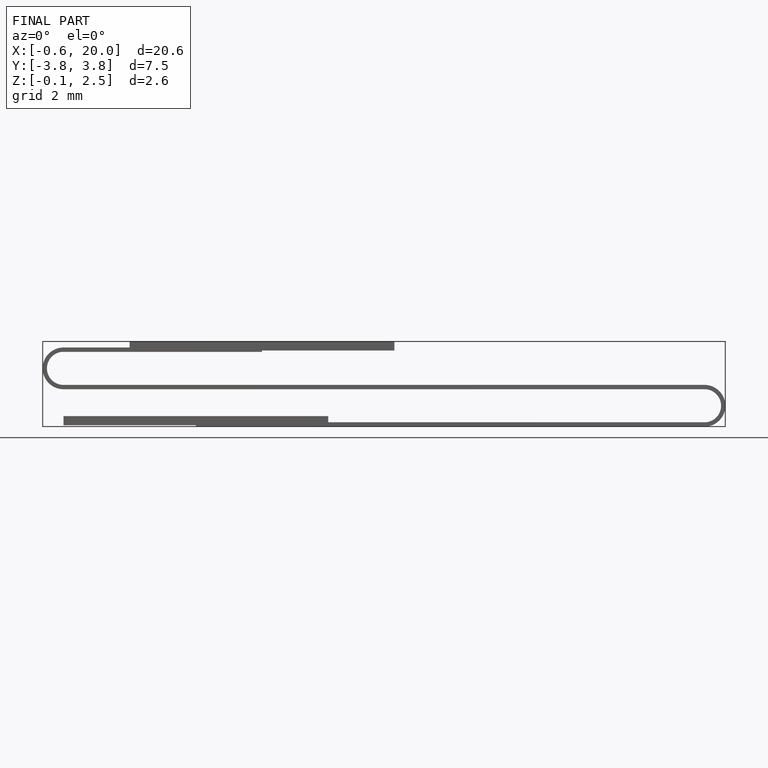
[diagram: finished part — front view with bounding-box wireframe]
